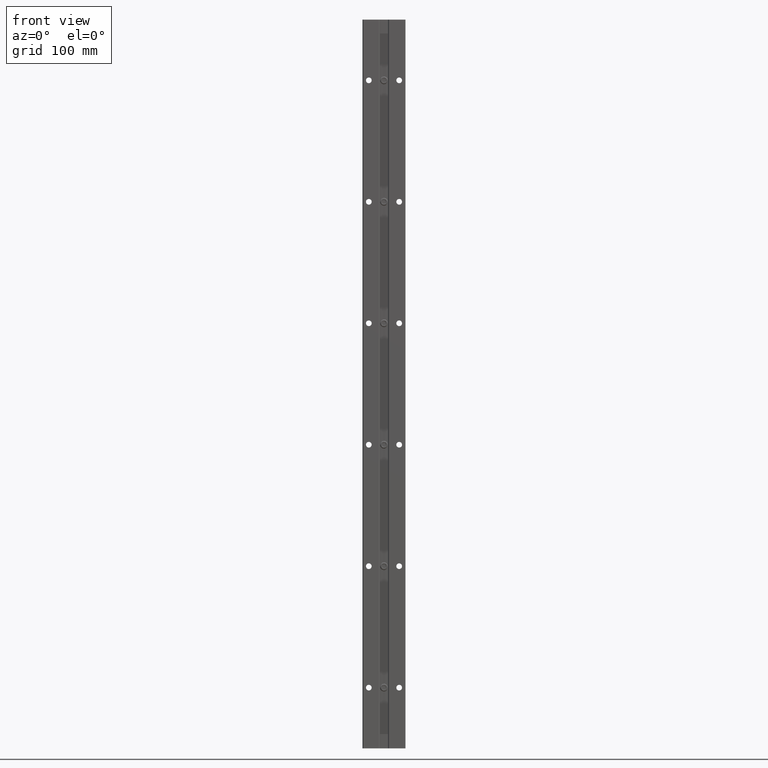
[diagram: clean part render]
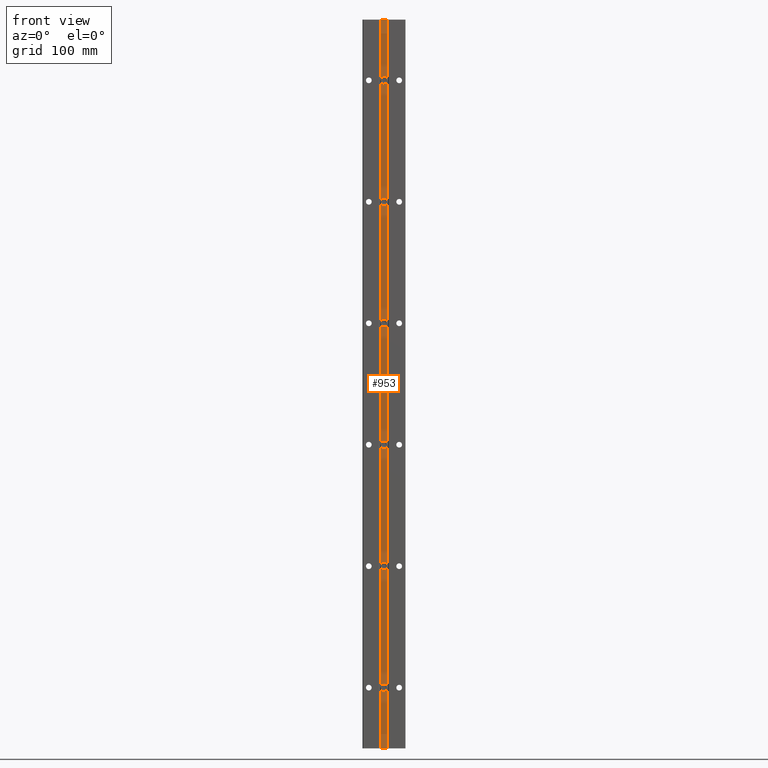
[diagram: same view with one face highlighted and labeled with its STEP entity id]
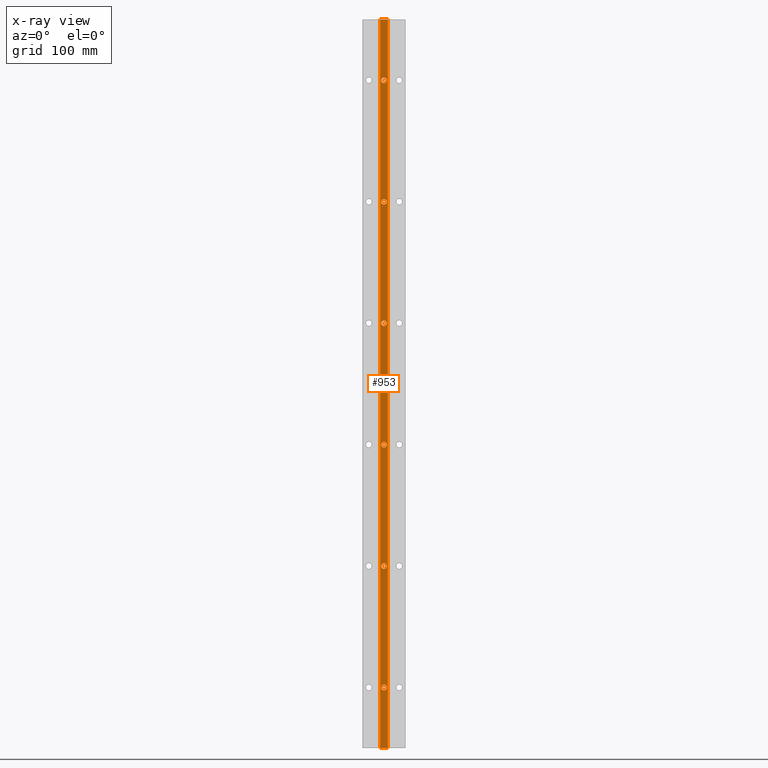
[diagram: x-ray of the same camera — body ghosted, the highlighted face saturated]
A machine part, front view. The second image highlights one B-rep face of the part: STEP entity #953.
The next image is the same camera in x-ray: the body ghosted, the highlighted face saturated — about 0% of this face is hidden behind the body in this view.
In plain terms, the highlighted planar face has unit normal (-0, -1, 0).
Its self-contained STEP definition (entity closure, byte-faithful):
#180 = CARTESIAN_POINT ( 'NONE',  ( 0.000000000000000000, 0.2650000000000005684, -21.00000000000000355 ) ) ;
#197 = CARTESIAN_POINT ( 'NONE',  ( 0.000000000000000000, 0.2650000000000005684, -33.00000000000000000 ) ) ;
#246 = EDGE_LOOP ( 'NONE', ( #9134, #3331 ) ) ;
#301 = CARTESIAN_POINT ( 'NONE',  ( 0.000000000000000000, 0.2650000000000005684, -3.000000000000000444 ) ) ;
#452 = VECTOR ( 'NONE', #5842, 39.37007874015748143 ) ;
#453 = LINE ( 'NONE', #3517, #4995 ) ;
#470 = CARTESIAN_POINT ( 'NONE',  ( 0.000000000000000000, 0.2650000000000005684, -15.00000000000000000 ) ) ;
#479 = CARTESIAN_POINT ( 'NONE',  ( 1.227466029685446482E-31, 0.2650000000000005684, -33.14050000000000296 ) ) ;
#600 = CARTESIAN_POINT ( 'NONE',  ( 1.227466029685446482E-31, 0.2650000000000005684, -21.14050000000000296 ) ) ;
#606 = ORIENTED_EDGE ( 'NONE', *, *, #11110, .T. ) ;
#953 = ADVANCED_FACE ( 'NONE', ( #2410, #8487, #9589, #6534, #7514, #9516, #3361 ), #8750, .T. ) ;
#1094 = AXIS2_PLACEMENT_3D ( 'NONE', #470, #7050, #7959 ) ;
#1239 = CARTESIAN_POINT ( 'NONE',  ( -0.1900000000033017222, 0.2650000000000007350, -38.49573696227415098 ) ) ;
#1250 = EDGE_CURVE ( 'NONE', #8479, #4812, #10790, .T. ) ;
#1342 = VERTEX_POINT ( 'NONE', #13253 ) ;
#1382 = CIRCLE ( 'NONE', #2918, 0.1405000000000000693 ) ;
#1482 = EDGE_LOOP ( 'NONE', ( #12498, #606 ) ) ;
#1739 = EDGE_CURVE ( 'NONE', #8048, #5509, #8925, .T. ) ;
#2000 = CARTESIAN_POINT ( 'NONE',  ( 1.720628752802054255E-17, 0.2650000000000005684, -32.85950000000000415 ) ) ;
#2043 = AXIS2_PLACEMENT_3D ( 'NONE', #5971, #10212, #6030 ) ;
#2071 = VECTOR ( 'NONE', #4318, 39.37007874015748143 ) ;
#2410 = FACE_BOUND ( 'NONE', #246, .T. ) ;
#2432 = DIRECTION ( 'NONE',  ( 1.000000000000000000, -9.721878981011608308E-16, 0.000000000000000000 ) ) ;
#2468 = VERTEX_POINT ( 'NONE', #5273 ) ;
#2517 = LINE ( 'NONE', #6660, #2071 ) ;
#2706 = CARTESIAN_POINT ( 'NONE',  ( 1.720628752802054255E-17, 0.2650000000000005684, -20.85950000000000415 ) ) ;
#2743 = ORIENTED_EDGE ( 'NONE', *, *, #1250, .T. ) ;
#2852 = CIRCLE ( 'NONE', #6888, 0.1405000000000000693 ) ;
#2905 = EDGE_CURVE ( 'NONE', #11487, #7135, #2517, .T. ) ;
#2918 = AXIS2_PLACEMENT_3D ( 'NONE', #5445, #5378, #13659 ) ;
#2929 = EDGE_CURVE ( 'NONE', #6722, #9581, #4724, .T. ) ;
#3112 = CARTESIAN_POINT ( 'NONE',  ( 1.720628752802041005E-17, 0.2650000000000005684, -2.859499999999999709 ) ) ;
#3286 = DIRECTION ( 'NONE',  ( 1.000000000000000000, -9.721878981011608308E-16, 0.000000000000000000 ) ) ;
#3294 = DIRECTION ( 'NONE',  ( -8.986342084421929848E-16, -1.000000000000000000, 0.000000000000000000 ) ) ;
#3331 = ORIENTED_EDGE ( 'NONE', *, *, #5970, .T. ) ;
#3361 = FACE_OUTER_BOUND ( 'NONE', #3910, .T. ) ;
#3517 = CARTESIAN_POINT ( 'NONE',  ( -0.1900000000033017222, 0.2650000000000007350, -38.49573696227415098 ) ) ;
#3591 = AXIS2_PLACEMENT_3D ( 'NONE', #197, #8661, #4398 ) ;
#3638 = EDGE_CURVE ( 'NONE', #2468, #11487, #453, .T. ) ;
#3710 = CARTESIAN_POINT ( 'NONE',  ( 1.227466029685436848E-31, 0.2650000000000005684, -3.140500000000000735 ) ) ;
#3730 = LINE ( 'NONE', #6974, #452 ) ;
#3748 = ORIENTED_EDGE ( 'NONE', *, *, #9792, .T. ) ;
#3756 = ORIENTED_EDGE ( 'NONE', *, *, #12721, .T. ) ;
#3897 = CIRCLE ( 'NONE', #13052, 0.1405000000000000693 ) ;
#3910 = EDGE_LOOP ( 'NONE', ( #5934, #3756, #11725, #7091 ) ) ;
#4221 = CARTESIAN_POINT ( 'NONE',  ( -0.1900000000033017222, 0.2650000000000007350, -36.00000000000000000 ) ) ;
#4318 = DIRECTION ( 'NONE',  ( 1.000000000000000000, -8.986342084421927875E-16, 0.000000000000000000 ) ) ;
#4398 = DIRECTION ( 'NONE',  ( 1.000000000000000000, -9.721878981011608308E-16, 0.000000000000000000 ) ) ;
#4516 = EDGE_LOOP ( 'NONE', ( #7421, #12585 ) ) ;
#4724 = CIRCLE ( 'NONE', #3591, 0.1405000000000000693 ) ;
#4730 = DIRECTION ( 'NONE',  ( 8.986342084421929848E-16, 1.000000000000000000, -0.000000000000000000 ) ) ;
#4812 = VERTEX_POINT ( 'NONE', #12232 ) ;
#4851 = VERTEX_POINT ( 'NONE', #2706 ) ;
#4911 = CARTESIAN_POINT ( 'NONE',  ( 1.720628752802054255E-17, 0.2650000000000005684, -14.85950000000000060 ) ) ;
#4976 = CIRCLE ( 'NONE', #8767, 0.1405000000000000693 ) ;
#4995 = VECTOR ( 'NONE', #6828, 39.37007874015748143 ) ;
#5040 = ORIENTED_EDGE ( 'NONE', *, *, #9208, .T. ) ;
#5146 = LINE ( 'NONE', #4221, #8872 ) ;
#5243 = DIRECTION ( 'NONE',  ( 1.000000000000000000, -9.721878981011608308E-16, 0.000000000000000000 ) ) ;
#5273 = CARTESIAN_POINT ( 'NONE',  ( -0.1900000000033017222, 0.2650000000000007905, -36.00000000000000000 ) ) ;
#5378 = DIRECTION ( 'NONE',  ( 8.986342084421929848E-16, 1.000000000000000000, -0.000000000000000000 ) ) ;
#5423 = EDGE_LOOP ( 'NONE', ( #7066, #6749 ) ) ;
#5445 = CARTESIAN_POINT ( 'NONE',  ( 0.000000000000000000, 0.2650000000000005684, -21.00000000000000355 ) ) ;
#5509 = VERTEX_POINT ( 'NONE', #3112 ) ;
#5545 = DIRECTION ( 'NONE',  ( 8.986342084421929848E-16, 1.000000000000000000, -0.000000000000000000 ) ) ;
#5589 = CARTESIAN_POINT ( 'NONE',  ( 1.227466029685446482E-31, 0.2650000000000005684, -15.14049999999999940 ) ) ;
#5642 = CARTESIAN_POINT ( 'NONE',  ( 0.000000000000000000, 0.2650000000000005684, -27.00000000000000355 ) ) ;
#5842 = DIRECTION ( 'NONE',  ( 0.000000000000000000, 0.000000000000000000, 1.000000000000000000 ) ) ;
#5934 = ORIENTED_EDGE ( 'NONE', *, *, #12959, .F. ) ;
#5970 = EDGE_CURVE ( 'NONE', #6839, #1342, #3897, .T. ) ;
#5971 = CARTESIAN_POINT ( 'NONE',  ( 0.000000000000000000, 0.2650000000000005684, -15.00000000000000000 ) ) ;
#6030 = DIRECTION ( 'NONE',  ( 1.000000000000000000, -9.721878981011608308E-16, 0.000000000000000000 ) ) ;
#6115 = DIRECTION ( 'NONE',  ( -1.000000000000000000, 8.986342084421929848E-16, 0.000000000000000000 ) ) ;
#6415 = DIRECTION ( 'NONE',  ( 8.986342084421929848E-16, 1.000000000000000000, -0.000000000000000000 ) ) ;
#6534 = FACE_BOUND ( 'NONE', #11255, .T. ) ;
#6660 = CARTESIAN_POINT ( 'NONE',  ( -0.1900000000033017222, 0.2650000000000007350, 0.000000000000000000 ) ) ;
#6722 = VERTEX_POINT ( 'NONE', #479 ) ;
#6749 = ORIENTED_EDGE ( 'NONE', *, *, #12700, .T. ) ;
#6828 = DIRECTION ( 'NONE',  ( 0.000000000000000000, 0.000000000000000000, 1.000000000000000000 ) ) ;
#6839 = VERTEX_POINT ( 'NONE', #10320 ) ;
#6888 = AXIS2_PLACEMENT_3D ( 'NONE', #180, #6415, #2432 ) ;
#6974 = CARTESIAN_POINT ( 'NONE',  ( 0.1899999999966978936, 0.2650000000000004019, -38.49573696227415098 ) ) ;
#7005 = EDGE_CURVE ( 'NONE', #13548, #4851, #2852, .T. ) ;
#7050 = DIRECTION ( 'NONE',  ( 8.986342084421929848E-16, 1.000000000000000000, -0.000000000000000000 ) ) ;
#7066 = ORIENTED_EDGE ( 'NONE', *, *, #8905, .T. ) ;
#7091 = ORIENTED_EDGE ( 'NONE', *, *, #3638, .F. ) ;
#7134 = CARTESIAN_POINT ( 'NONE',  ( 0.1899999999966978936, 0.2650000000000004019, -36.00000000000000000 ) ) ;
#7135 = VERTEX_POINT ( 'NONE', #11584 ) ;
#7215 = EDGE_CURVE ( 'NONE', #1342, #6839, #11342, .T. ) ;
#7301 = CARTESIAN_POINT ( 'NONE',  ( 0.000000000000000000, 0.2650000000000005684, -27.00000000000000355 ) ) ;
#7421 = ORIENTED_EDGE ( 'NONE', *, *, #2929, .T. ) ;
#7514 = FACE_BOUND ( 'NONE', #4516, .T. ) ;
#7555 = DIRECTION ( 'NONE',  ( 1.000000000000000000, -9.721878981011608308E-16, 0.000000000000000000 ) ) ;
#7584 = DIRECTION ( 'NONE',  ( 1.000000000000000000, -8.986342084421929848E-16, 0.000000000000000000 ) ) ;
#7791 = CARTESIAN_POINT ( 'NONE',  ( 0.000000000000000000, 0.2650000000000005684, -33.00000000000000000 ) ) ;
#7892 = AXIS2_PLACEMENT_3D ( 'NONE', #5642, #13048, #7555 ) ;
#7922 = DIRECTION ( 'NONE',  ( 8.986342084421929848E-16, 1.000000000000000000, -0.000000000000000000 ) ) ;
#7959 = DIRECTION ( 'NONE',  ( 1.000000000000000000, -9.721878981011608308E-16, 0.000000000000000000 ) ) ;
#8048 = VERTEX_POINT ( 'NONE', #3710 ) ;
#8313 = CARTESIAN_POINT ( 'NONE',  ( 0.000000000000000000, 0.2650000000000005684, -9.000000000000001776 ) ) ;
#8416 = VERTEX_POINT ( 'NONE', #7134 ) ;
#8479 = VERTEX_POINT ( 'NONE', #12764 ) ;
#8487 = FACE_BOUND ( 'NONE', #5423, .T. ) ;
#8661 = DIRECTION ( 'NONE',  ( 8.986342084421929848E-16, 1.000000000000000000, -0.000000000000000000 ) ) ;
#8750 = PLANE ( 'NONE',  #10315 ) ;
#8767 = AXIS2_PLACEMENT_3D ( 'NONE', #7301, #10576, #3286 ) ;
#8872 = VECTOR ( 'NONE', #6115, 39.37007874015748143 ) ;
#8905 = EDGE_CURVE ( 'NONE', #11782, #10672, #12945, .T. ) ;
#8925 = CIRCLE ( 'NONE', #10946, 0.1405000000000000693 ) ;
#9083 = CIRCLE ( 'NONE', #1094, 0.1405000000000000693 ) ;
#9134 = ORIENTED_EDGE ( 'NONE', *, *, #7215, .T. ) ;
#9208 = EDGE_CURVE ( 'NONE', #4851, #13548, #1382, .T. ) ;
#9359 = DIRECTION ( 'NONE',  ( 8.986342084421929848E-16, 1.000000000000000000, -0.000000000000000000 ) ) ;
#9516 = FACE_BOUND ( 'NONE', #1482, .T. ) ;
#9581 = VERTEX_POINT ( 'NONE', #2000 ) ;
#9589 = FACE_BOUND ( 'NONE', #9590, .T. ) ;
#9590 = EDGE_LOOP ( 'NONE', ( #10529, #5040 ) ) ;
#9712 = EDGE_CURVE ( 'NONE', #9581, #6722, #10094, .T. ) ;
#9792 = EDGE_CURVE ( 'NONE', #4812, #8479, #4976, .T. ) ;
#9800 = DIRECTION ( 'NONE',  ( 8.986342084421929848E-16, 1.000000000000000000, -0.000000000000000000 ) ) ;
#10094 = CIRCLE ( 'NONE', #11909, 0.1405000000000000693 ) ;
#10212 = DIRECTION ( 'NONE',  ( 8.986342084421929848E-16, 1.000000000000000000, -0.000000000000000000 ) ) ;
#10315 = AXIS2_PLACEMENT_3D ( 'NONE', #1239, #3294, #7584 ) ;
#10320 = CARTESIAN_POINT ( 'NONE',  ( 1.720628752802041005E-17, 0.2650000000000005684, -8.859500000000000597 ) ) ;
#10529 = ORIENTED_EDGE ( 'NONE', *, *, #7005, .T. ) ;
#10576 = DIRECTION ( 'NONE',  ( 8.986342084421929848E-16, 1.000000000000000000, -0.000000000000000000 ) ) ;
#10594 = AXIS2_PLACEMENT_3D ( 'NONE', #12233, #4730, #13246 ) ;
#10672 = VERTEX_POINT ( 'NONE', #4911 ) ;
#10790 = CIRCLE ( 'NONE', #7892, 0.1405000000000000693 ) ;
#10927 = DIRECTION ( 'NONE',  ( 1.000000000000000000, -9.721878981011608308E-16, 0.000000000000000000 ) ) ;
#10946 = AXIS2_PLACEMENT_3D ( 'NONE', #301, #9800, #12880 ) ;
#11110 = EDGE_CURVE ( 'NONE', #5509, #8048, #12818, .T. ) ;
#11145 = CARTESIAN_POINT ( 'NONE',  ( -0.1900000000033017222, 0.2650000000000007905, 0.000000000000000000 ) ) ;
#11255 = EDGE_LOOP ( 'NONE', ( #3748, #2743 ) ) ;
#11342 = CIRCLE ( 'NONE', #12904, 0.1405000000000000693 ) ;
#11487 = VERTEX_POINT ( 'NONE', #11145 ) ;
#11584 = CARTESIAN_POINT ( 'NONE',  ( 0.1899999999966978936, 0.2650000000000004019, 0.000000000000000000 ) ) ;
#11725 = ORIENTED_EDGE ( 'NONE', *, *, #2905, .F. ) ;
#11782 = VERTEX_POINT ( 'NONE', #5589 ) ;
#11909 = AXIS2_PLACEMENT_3D ( 'NONE', #7791, #7922, #10927 ) ;
#11930 = DIRECTION ( 'NONE',  ( 1.000000000000000000, -9.721878981011608308E-16, 0.000000000000000000 ) ) ;
#12232 = CARTESIAN_POINT ( 'NONE',  ( 1.227466029685446482E-31, 0.2650000000000005684, -27.14050000000000296 ) ) ;
#12233 = CARTESIAN_POINT ( 'NONE',  ( 0.000000000000000000, 0.2650000000000005684, -3.000000000000000444 ) ) ;
#12498 = ORIENTED_EDGE ( 'NONE', *, *, #1739, .T. ) ;
#12585 = ORIENTED_EDGE ( 'NONE', *, *, #9712, .T. ) ;
#12700 = EDGE_CURVE ( 'NONE', #10672, #11782, #9083, .T. ) ;
#12721 = EDGE_CURVE ( 'NONE', #8416, #7135, #3730, .T. ) ;
#12764 = CARTESIAN_POINT ( 'NONE',  ( 1.720628752802054255E-17, 0.2650000000000005684, -26.85950000000000415 ) ) ;
#12815 = CARTESIAN_POINT ( 'NONE',  ( 0.000000000000000000, 0.2650000000000005684, -9.000000000000001776 ) ) ;
#12818 = CIRCLE ( 'NONE', #10594, 0.1405000000000000693 ) ;
#12880 = DIRECTION ( 'NONE',  ( 1.000000000000000000, -9.721878981011608308E-16, 0.000000000000000000 ) ) ;
#12904 = AXIS2_PLACEMENT_3D ( 'NONE', #12815, #5545, #11930 ) ;
#12945 = CIRCLE ( 'NONE', #2043, 0.1405000000000000693 ) ;
#12959 = EDGE_CURVE ( 'NONE', #8416, #2468, #5146, .T. ) ;
#13048 = DIRECTION ( 'NONE',  ( 8.986342084421929848E-16, 1.000000000000000000, -0.000000000000000000 ) ) ;
#13052 = AXIS2_PLACEMENT_3D ( 'NONE', #8313, #9359, #5243 ) ;
#13246 = DIRECTION ( 'NONE',  ( 1.000000000000000000, -9.721878981011608308E-16, 0.000000000000000000 ) ) ;
#13253 = CARTESIAN_POINT ( 'NONE',  ( 1.227466029685436848E-31, 0.2650000000000005684, -9.140500000000001180 ) ) ;
#13548 = VERTEX_POINT ( 'NONE', #600 ) ;
#13659 = DIRECTION ( 'NONE',  ( 1.000000000000000000, -9.721878981011608308E-16, 0.000000000000000000 ) ) ;